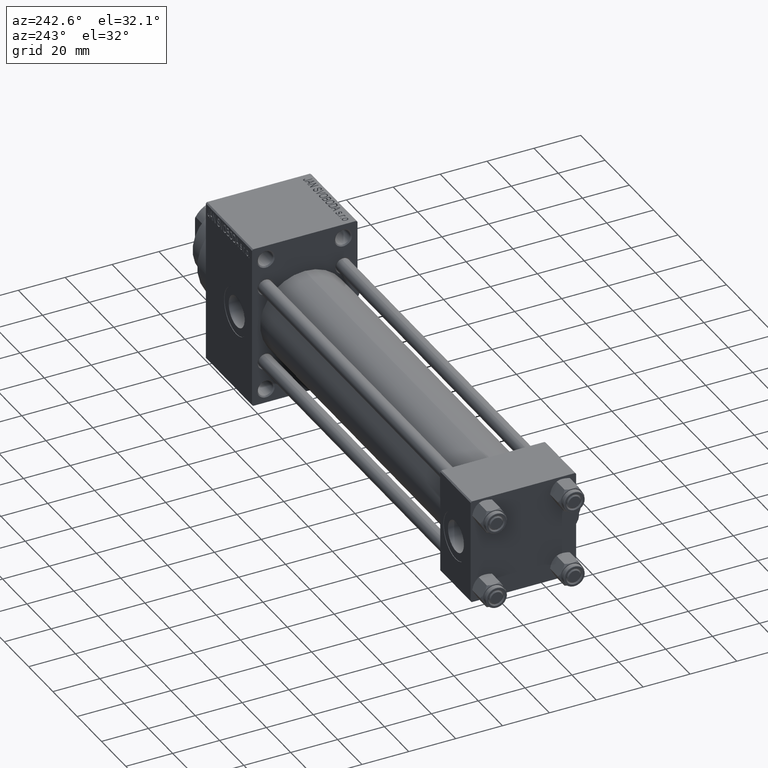
[diagram: clean part render]
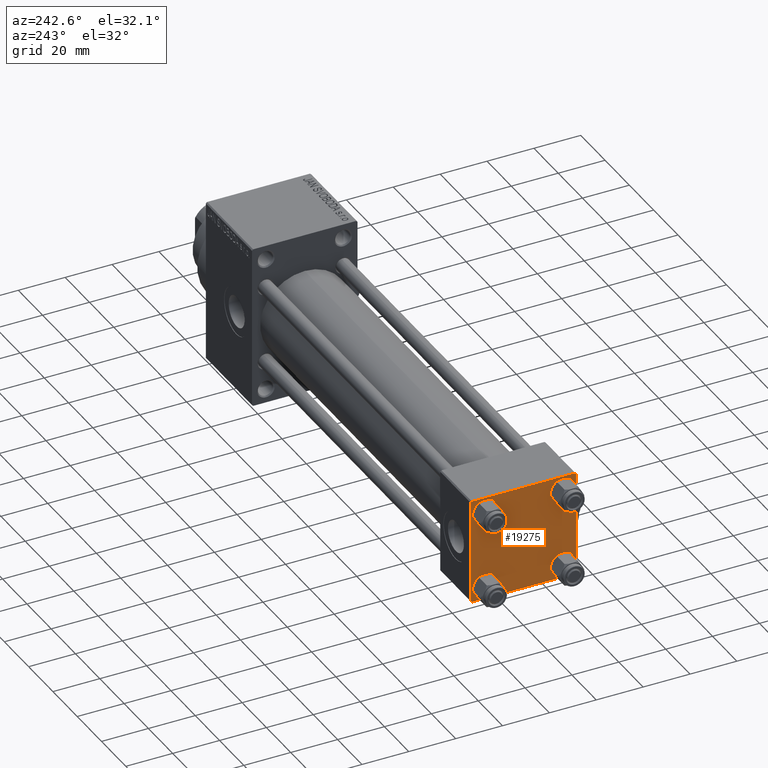
[diagram: same view with one face highlighted and labeled with its STEP entity id]
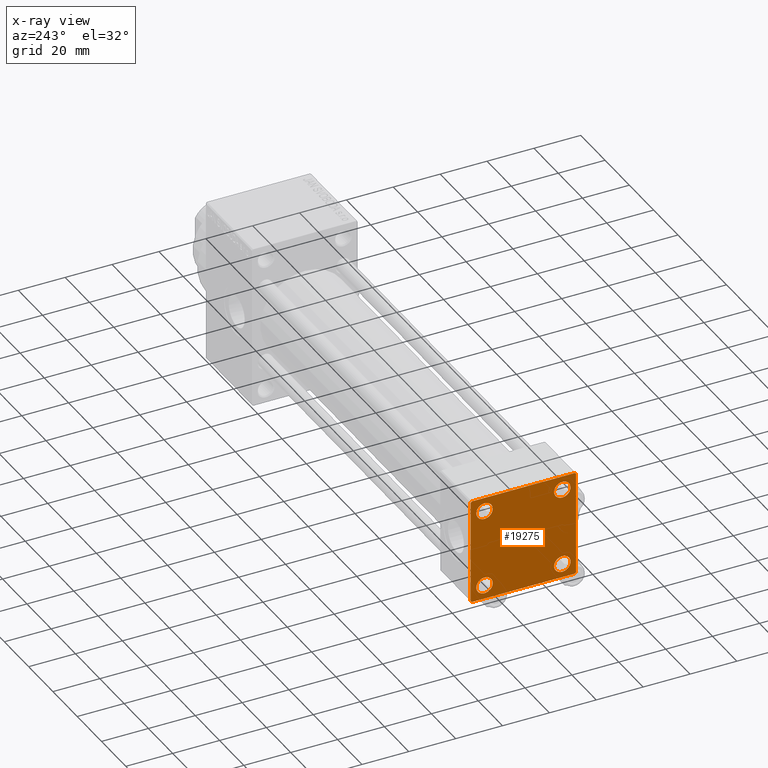
[diagram: x-ray of the same camera — body ghosted, the highlighted face saturated]
A machine part, auxiliary view. The second image highlights one B-rep face of the part: STEP entity #19275.
The next image is the same camera in x-ray: the body ghosted, the highlighted face saturated — about 0% of this face is hidden behind the body in this view.
In plain terms, the highlighted planar face has unit normal (-1, 0, 0).
Its self-contained STEP definition (entity closure, byte-faithful):
#189 = VERTEX_POINT ( 'NONE', #37315 ) ;
#424 = EDGE_LOOP ( 'NONE', ( #3142, #11904, #21737, #33321, #43321, #37182, #11987, #6931 ) ) ;
#1255 = CARTESIAN_POINT ( 'NONE',  ( 0.000000000000000000, -22.25000000000014566, -22.24999999999984013 ) ) ;
#1405 = LINE ( 'NONE', #46809, #45554 ) ;
#1928 = CARTESIAN_POINT ( 'NONE',  ( 0.000000000000000000, -22.50000000000000000, -21.99999999999997158 ) ) ;
#1936 = ORIENTED_EDGE ( 'NONE', *, *, #7041, .T. ) ;
#2020 = DIRECTION ( 'NONE',  ( 1.000000000000000000, -0.000000000000000000, 0.000000000000000000 ) ) ;
#2029 = DIRECTION ( 'NONE',  ( -1.000000000000000000, 0.000000000000000000, -0.000000000000000000 ) ) ;
#2104 = VERTEX_POINT ( 'NONE', #19821 ) ;
#2422 = DIRECTION ( 'NONE',  ( 1.000000000000000000, -0.000000000000000000, 0.000000000000000000 ) ) ;
#2596 = CARTESIAN_POINT ( 'NONE',  ( 0.000000000000000000, 22.25000000000014566, -22.24999999999984013 ) ) ;
#2957 = VERTEX_POINT ( 'NONE', #1928 ) ;
#3142 = ORIENTED_EDGE ( 'NONE', *, *, #28200, .T. ) ;
#3665 = CARTESIAN_POINT ( 'NONE',  ( 0.000000000000000000, 22.24999999999999645, 22.24999999999999645 ) ) ;
#4227 = LINE ( 'NONE', #16394, #14345 ) ;
#4350 = AXIS2_PLACEMENT_3D ( 'NONE', #43470, #2029, #39729 ) ;
#4351 = CARTESIAN_POINT ( 'NONE',  ( 0.000000000000000000, 22.50000000000000000, -22.49999999999999645 ) ) ;
#4534 = DIRECTION ( 'NONE',  ( 1.000000000000000000, -0.000000000000000000, 0.000000000000000000 ) ) ;
#4638 = DIRECTION ( 'NONE',  ( 1.000000000000000000, -0.000000000000000000, 0.000000000000000000 ) ) ;
#5325 = EDGE_CURVE ( 'NONE', #7233, #9582, #7304, .T. ) ;
#5396 = CARTESIAN_POINT ( 'NONE',  ( 0.000000000000000000, -16.59999999999999076, -13.10000000000001030 ) ) ;
#6072 = DIRECTION ( 'NONE',  ( 0.000000000000000000, 0.000000000000000000, 1.000000000000000000 ) ) ;
#6127 = EDGE_LOOP ( 'NONE', ( #16607, #18822 ) ) ;
#6325 = EDGE_LOOP ( 'NONE', ( #21030, #38112 ) ) ;
#6531 = CARTESIAN_POINT ( 'NONE',  ( 0.000000000000000000, -21.99999999999997158, -22.50000000000000711 ) ) ;
#6931 = ORIENTED_EDGE ( 'NONE', *, *, #15158, .T. ) ;
#7041 = EDGE_CURVE ( 'NONE', #189, #33262, #31758, .T. ) ;
#7197 = EDGE_CURVE ( 'NONE', #29253, #45647, #4227, .T. ) ;
#7233 = VERTEX_POINT ( 'NONE', #19621 ) ;
#7304 = LINE ( 'NONE', #2596, #42866 ) ;
#7458 = DIRECTION ( 'NONE',  ( 0.000000000000000000, 0.000000000000000000, 1.000000000000000000 ) ) ;
#7668 = DIRECTION ( 'NONE',  ( 1.000000000000000000, -0.000000000000000000, 0.000000000000000000 ) ) ;
#8105 = CARTESIAN_POINT ( 'NONE',  ( -0.000000000000000000, -22.24999999999984013, 22.25000000000015277 ) ) ;
#8603 = LINE ( 'NONE', #8105, #43112 ) ;
#8996 = FACE_BOUND ( 'NONE', #6325, .T. ) ;
#9020 = EDGE_CURVE ( 'NONE', #48051, #44244, #12828, .T. ) ;
#9474 = FACE_BOUND ( 'NONE', #20331, .T. ) ;
#9582 = VERTEX_POINT ( 'NONE', #14420 ) ;
#9634 = DIRECTION ( 'NONE',  ( 0.000000000000000000, 0.000000000000000000, 1.000000000000000000 ) ) ;
#10304 = CARTESIAN_POINT ( 'NONE',  ( 0.000000000000000000, -21.99999999999997868, 22.50000000000000000 ) ) ;
#10336 = CARTESIAN_POINT ( 'NONE',  ( 0.000000000000000000, 16.59999999999999787, 13.10000000000000675 ) ) ;
#10400 = DIRECTION ( 'NONE',  ( 0.000000000000000000, 0.000000000000000000, 1.000000000000000000 ) ) ;
#10837 = DIRECTION ( 'NONE',  ( 1.000000000000000000, -0.000000000000000000, 0.000000000000000000 ) ) ;
#11087 = DIRECTION ( 'NONE',  ( 0.000000000000000000, 0.000000000000000000, 1.000000000000000000 ) ) ;
#11904 = ORIENTED_EDGE ( 'NONE', *, *, #5325, .T. ) ;
#11987 = ORIENTED_EDGE ( 'NONE', *, *, #7197, .F. ) ;
#12151 = CARTESIAN_POINT ( 'NONE',  ( 0.000000000000000000, 16.59999999999999787, 20.10000000000000142 ) ) ;
#12230 = AXIS2_PLACEMENT_3D ( 'NONE', #38659, #36306, #6072 ) ;
#12253 = CARTESIAN_POINT ( 'NONE',  ( 0.000000000000000000, -16.59999999999999076, 13.10000000000001030 ) ) ;
#12786 = CARTESIAN_POINT ( 'NONE',  ( 0.000000000000000000, -16.59999999999999076, -16.60000000000000853 ) ) ;
#12828 = CIRCLE ( 'NONE', #46129, 3.499999999999996003 ) ;
#13209 = FACE_BOUND ( 'NONE', #27665, .T. ) ;
#14345 = VECTOR ( 'NONE', #35216, 1000.000000000000000 ) ;
#14420 = CARTESIAN_POINT ( 'NONE',  ( 0.000000000000000000, 21.99999999999999289, -22.49999999999999645 ) ) ;
#14658 = EDGE_CURVE ( 'NONE', #26097, #31646, #31224, .T. ) ;
#15158 = EDGE_CURVE ( 'NONE', #29253, #2104, #19304, .T. ) ;
#15169 = AXIS2_PLACEMENT_3D ( 'NONE', #43943, #2020, #47425 ) ;
#16379 = CIRCLE ( 'NONE', #34583, 3.499999999999996003 ) ;
#16394 = CARTESIAN_POINT ( 'NONE',  ( 0.000000000000000000, 22.50000000000000000, 22.50000000000000355 ) ) ;
#16607 = ORIENTED_EDGE ( 'NONE', *, *, #17275, .T. ) ;
#16706 = CARTESIAN_POINT ( 'NONE',  ( 0.000000000000000000, -22.50000000000000000, 22.50000000000000000 ) ) ;
#17232 = CARTESIAN_POINT ( 'NONE',  ( 0.000000000000000000, 16.59999999999999787, -20.10000000000000142 ) ) ;
#17275 = EDGE_CURVE ( 'NONE', #44244, #48051, #31217, .T. ) ;
#18822 = ORIENTED_EDGE ( 'NONE', *, *, #9020, .T. ) ;
#18979 = VECTOR ( 'NONE', #43412, 1000.000000000000000 ) ;
#19275 = ADVANCED_FACE ( 'NONE', ( #13209, #8996, #9474, #20411, #29040 ), #28321, .T. ) ;
#19304 = LINE ( 'NONE', #3665, #26387 ) ;
#19552 = VERTEX_POINT ( 'NONE', #20355 ) ;
#19621 = CARTESIAN_POINT ( 'NONE',  ( 0.000000000000000000, 22.50000000000000000, -21.99999999999996803 ) ) ;
#19674 = DIRECTION ( 'NONE',  ( 0.000000000000000000, 0.000000000000000000, 1.000000000000000000 ) ) ;
#19778 = DIRECTION ( 'NONE',  ( 0.000000000000000000, 0.000000000000000000, 1.000000000000000000 ) ) ;
#19821 = CARTESIAN_POINT ( 'NONE',  ( 0.000000000000000000, 22.50000000000000000, 21.99999999999999645 ) ) ;
#19866 = LINE ( 'NONE', #1255, #18979 ) ;
#20331 = EDGE_LOOP ( 'NONE', ( #23544, #20769 ) ) ;
#20355 = CARTESIAN_POINT ( 'NONE',  ( 0.000000000000000000, 16.59999999999999787, -13.10000000000000675 ) ) ;
#20411 = FACE_BOUND ( 'NONE', #6127, .T. ) ;
#20769 = ORIENTED_EDGE ( 'NONE', *, *, #22477, .T. ) ;
#20894 = DIRECTION ( 'NONE',  ( 0.000000000000000000, 0.000000000000000000, -1.000000000000000000 ) ) ;
#21030 = ORIENTED_EDGE ( 'NONE', *, *, #31963, .T. ) ;
#21737 = ORIENTED_EDGE ( 'NONE', *, *, #42163, .T. ) ;
#21760 = CARTESIAN_POINT ( 'NONE',  ( 0.000000000000000000, -16.59999999999999076, -16.60000000000000853 ) ) ;
#22477 = EDGE_CURVE ( 'NONE', #42282, #19552, #16379, .T. ) ;
#23544 = ORIENTED_EDGE ( 'NONE', *, *, #45809, .T. ) ;
#23731 = DIRECTION ( 'NONE',  ( 0.000000000000000000, 0.000000000000000000, -1.000000000000000000 ) ) ;
#24941 = AXIS2_PLACEMENT_3D ( 'NONE', #12786, #25552, #7458 ) ;
#25552 = DIRECTION ( 'NONE',  ( 1.000000000000000000, -0.000000000000000000, 0.000000000000000000 ) ) ;
#26097 = VERTEX_POINT ( 'NONE', #34750 ) ;
#26387 = VECTOR ( 'NONE', #46100, 1000.000000000000114 ) ;
#27330 = CIRCLE ( 'NONE', #24941, 3.499999999999996003 ) ;
#27373 = EDGE_CURVE ( 'NONE', #41861, #45647, #8603, .T. ) ;
#27665 = EDGE_LOOP ( 'NONE', ( #1936, #44347 ) ) ;
#28200 = EDGE_CURVE ( 'NONE', #2104, #7233, #1405, .T. ) ;
#28321 = PLANE ( 'NONE',  #4350 ) ;
#29040 = FACE_OUTER_BOUND ( 'NONE', #424, .T. ) ;
#29253 = VERTEX_POINT ( 'NONE', #30638 ) ;
#30638 = CARTESIAN_POINT ( 'NONE',  ( 0.000000000000000000, 21.99999999999999289, 22.50000000000000355 ) ) ;
#31217 = CIRCLE ( 'NONE', #12230, 3.499999999999996003 ) ;
#31224 = CIRCLE ( 'NONE', #41529, 3.499999999999996003 ) ;
#31646 = VERTEX_POINT ( 'NONE', #5396 ) ;
#31758 = CIRCLE ( 'NONE', #15169, 3.499999999999996003 ) ;
#31963 = EDGE_CURVE ( 'NONE', #31646, #26097, #27330, .T. ) ;
#33262 = VERTEX_POINT ( 'NONE', #12253 ) ;
#33321 = ORIENTED_EDGE ( 'NONE', *, *, #42853, .T. ) ;
#33591 = DIRECTION ( 'NONE',  ( -0.000000000000000000, -0.7071067811865426878, -0.7071067811865524577 ) ) ;
#34010 = CIRCLE ( 'NONE', #41967, 3.499999999999996003 ) ;
#34583 = AXIS2_PLACEMENT_3D ( 'NONE', #42352, #4638, #19778 ) ;
#34612 = DIRECTION ( 'NONE',  ( 0.000000000000000000, -1.000000000000000000, -2.312964634635742957E-16 ) ) ;
#34648 = CARTESIAN_POINT ( 'NONE',  ( 0.000000000000000000, -16.59999999999999076, 16.60000000000000853 ) ) ;
#34750 = CARTESIAN_POINT ( 'NONE',  ( 0.000000000000000000, -16.59999999999999076, -20.10000000000000497 ) ) ;
#35216 = DIRECTION ( 'NONE',  ( 0.000000000000000000, -1.000000000000000000, -7.709882115452476934E-17 ) ) ;
#36117 = CARTESIAN_POINT ( 'NONE',  ( 0.000000000000000000, -22.50000000000000000, 22.00000000000000000 ) ) ;
#36306 = DIRECTION ( 'NONE',  ( 1.000000000000000000, -0.000000000000000000, 0.000000000000000000 ) ) ;
#37182 = ORIENTED_EDGE ( 'NONE', *, *, #27373, .T. ) ;
#37315 = CARTESIAN_POINT ( 'NONE',  ( 0.000000000000000000, -16.59999999999999076, 20.10000000000000853 ) ) ;
#37667 = CARTESIAN_POINT ( 'NONE',  ( 0.000000000000000000, 16.59999999999999787, 16.60000000000000497 ) ) ;
#38112 = ORIENTED_EDGE ( 'NONE', *, *, #14658, .T. ) ;
#38330 = LINE ( 'NONE', #4351, #41089 ) ;
#38659 = CARTESIAN_POINT ( 'NONE',  ( 0.000000000000000000, 16.59999999999999787, 16.60000000000000497 ) ) ;
#38856 = DIRECTION ( 'NONE',  ( -0.000000000000000000, 0.7071067811865525687, 0.7071067811865425767 ) ) ;
#39713 = EDGE_CURVE ( 'NONE', #41861, #2957, #44209, .T. ) ;
#39729 = DIRECTION ( 'NONE',  ( -0.000000000000000000, 0.000000000000000000, 1.000000000000000000 ) ) ;
#40334 = AXIS2_PLACEMENT_3D ( 'NONE', #42488, #4534, #19674 ) ;
#41089 = VECTOR ( 'NONE', #34612, 1000.000000000000000 ) ;
#41529 = AXIS2_PLACEMENT_3D ( 'NONE', #21760, #2422, #9634 ) ;
#41861 = VERTEX_POINT ( 'NONE', #36117 ) ;
#41967 = AXIS2_PLACEMENT_3D ( 'NONE', #34648, #10837, #11087 ) ;
#42163 = EDGE_CURVE ( 'NONE', #9582, #42479, #38330, .T. ) ;
#42282 = VERTEX_POINT ( 'NONE', #17232 ) ;
#42352 = CARTESIAN_POINT ( 'NONE',  ( 0.000000000000000000, 16.59999999999999787, -16.60000000000000497 ) ) ;
#42479 = VERTEX_POINT ( 'NONE', #6531 ) ;
#42488 = CARTESIAN_POINT ( 'NONE',  ( 0.000000000000000000, 16.59999999999999787, -16.60000000000000497 ) ) ;
#42646 = VECTOR ( 'NONE', #20894, 1000.000000000000000 ) ;
#42743 = CIRCLE ( 'NONE', #40334, 3.499999999999996003 ) ;
#42853 = EDGE_CURVE ( 'NONE', #42479, #2957, #19866, .T. ) ;
#42866 = VECTOR ( 'NONE', #33591, 1000.000000000000000 ) ;
#43112 = VECTOR ( 'NONE', #38856, 999.9999999999998863 ) ;
#43236 = EDGE_CURVE ( 'NONE', #33262, #189, #34010, .T. ) ;
#43321 = ORIENTED_EDGE ( 'NONE', *, *, #39713, .F. ) ;
#43412 = DIRECTION ( 'NONE',  ( 0.000000000000000000, -0.7071067811865426878, 0.7071067811865524577 ) ) ;
#43470 = CARTESIAN_POINT ( 'NONE',  ( 0.000000000000000000, 0.000000000000000000, 0.000000000000000000 ) ) ;
#43943 = CARTESIAN_POINT ( 'NONE',  ( 0.000000000000000000, -16.59999999999999076, 16.60000000000000853 ) ) ;
#44209 = LINE ( 'NONE', #16706, #42646 ) ;
#44244 = VERTEX_POINT ( 'NONE', #12151 ) ;
#44347 = ORIENTED_EDGE ( 'NONE', *, *, #43236, .T. ) ;
#45554 = VECTOR ( 'NONE', #23731, 1000.000000000000000 ) ;
#45647 = VERTEX_POINT ( 'NONE', #10304 ) ;
#45809 = EDGE_CURVE ( 'NONE', #19552, #42282, #42743, .T. ) ;
#46100 = DIRECTION ( 'NONE',  ( 0.000000000000000000, 0.7071067811865474617, -0.7071067811865474617 ) ) ;
#46129 = AXIS2_PLACEMENT_3D ( 'NONE', #37667, #7668, #10400 ) ;
#46809 = CARTESIAN_POINT ( 'NONE',  ( 0.000000000000000000, 22.50000000000000000, 22.50000000000000355 ) ) ;
#47425 = DIRECTION ( 'NONE',  ( 0.000000000000000000, 0.000000000000000000, 1.000000000000000000 ) ) ;
#48051 = VERTEX_POINT ( 'NONE', #10336 ) ;